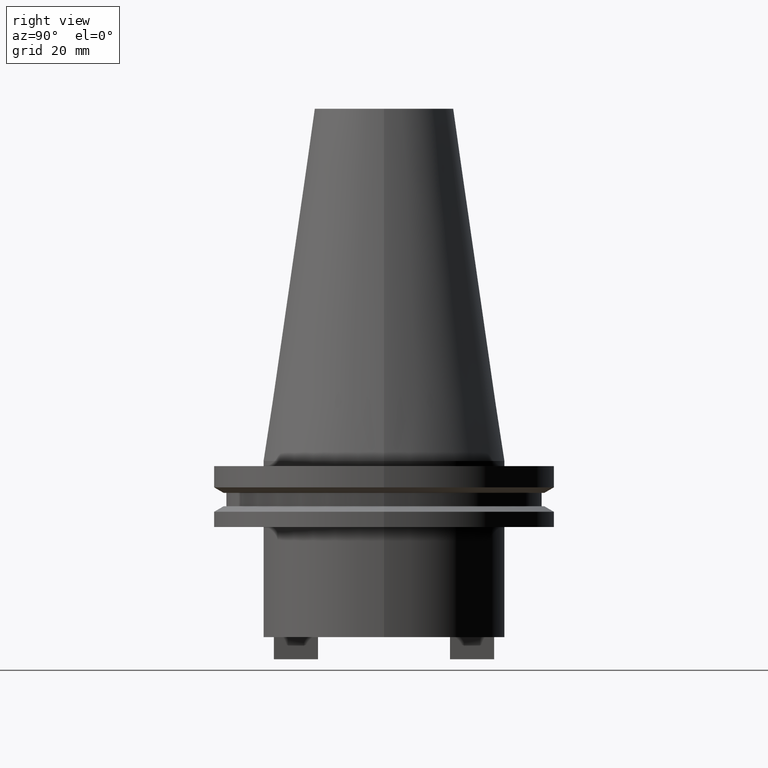
[diagram: clean part render]
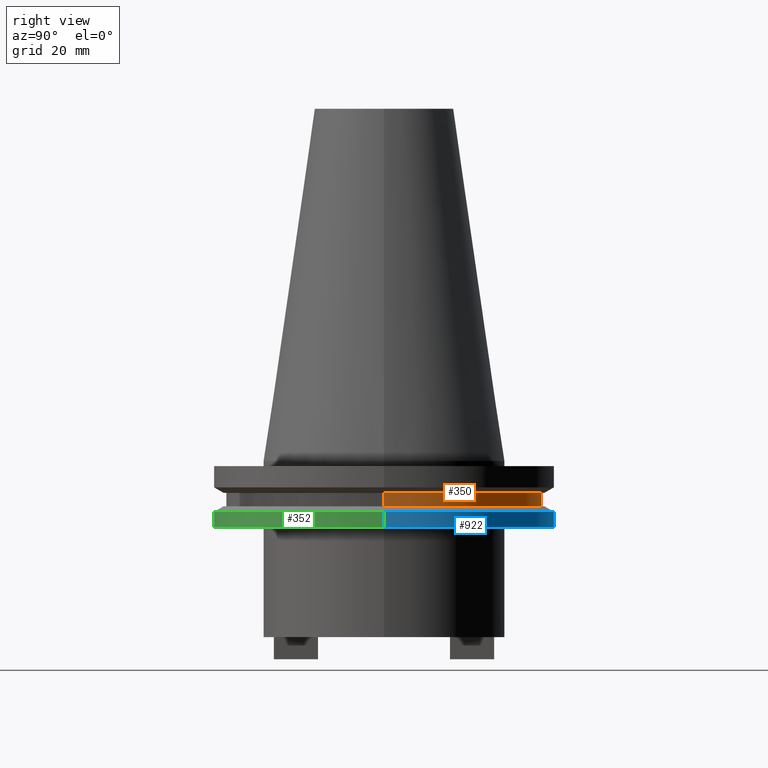
[diagram: same view with three faces highlighted in distinct colors, each labeled with its STEP entity id]
A machine part, right view with three faces highlighted in distinct colors.
Their STEP definitions:

[orange] entity #350 — the highlighted cylindrical surface (partial cylindrical patch) has radius 45.645 mm, axis along (-0, -0, 1).
#49 = VECTOR ( 'NONE', #749, 1000.000000000000000 ) ;
#64 = LINE ( 'NONE', #892, #196 ) ;
#67 = CARTESIAN_POINT ( 'NONE',  ( 0.000000000000000000, 0.000000000000000000, 101.5999999999999943 ) ) ;
#89 = EDGE_LOOP ( 'NONE', ( #219, #674, #766, #93 ) ) ;
#90 = DIRECTION ( 'NONE',  ( 1.000000000000000000, 0.000000000000000000, 0.000000000000000000 ) ) ;
#93 = ORIENTED_EDGE ( 'NONE', *, *, #986, .F. ) ;
#111 = CARTESIAN_POINT ( 'NONE',  ( 0.000000000000000000, 0.000000000000000000, -9.204999999999991189 ) ) ;
#122 = LINE ( 'NONE', #436, #49 ) ;
#128 = EDGE_CURVE ( 'NONE', #726, #815, #122, .T. ) ;
#151 = CIRCLE ( 'NONE', #871, 45.64500000000000313 ) ;
#196 = VECTOR ( 'NONE', #971, 1000.000000000000000 ) ;
#212 = AXIS2_PLACEMENT_3D ( 'NONE', #67, #532, #543 ) ;
#219 = ORIENTED_EDGE ( 'NONE', *, *, #963, .T. ) ;
#281 = CIRCLE ( 'NONE', #964, 45.64500000000000313 ) ;
#297 = FACE_OUTER_BOUND ( 'NONE', #89, .T. ) ;
#350 = ADVANCED_FACE ( 'NONE', ( #297 ), #631, .T. ) ;
#426 = CARTESIAN_POINT ( 'NONE',  ( 45.64500000000000313, 0.000000000000000000, -13.05499999999999794 ) ) ;
#436 = CARTESIAN_POINT ( 'NONE',  ( -45.64500000000000313, 5.589900314708094957E-15, 101.5999999999999943 ) ) ;
#444 = CARTESIAN_POINT ( 'NONE',  ( -45.64500000000000313, 5.589900314708094957E-15, -13.05499999999999794 ) ) ;
#460 = CARTESIAN_POINT ( 'NONE',  ( 45.64500000000000313, 0.000000000000000000, -9.204999999999991189 ) ) ;
#532 = DIRECTION ( 'NONE',  ( -0.000000000000000000, -0.000000000000000000, 1.000000000000000000 ) ) ;
#543 = DIRECTION ( 'NONE',  ( 1.000000000000000000, 0.000000000000000000, 0.000000000000000000 ) ) ;
#603 = DIRECTION ( 'NONE',  ( -0.000000000000000000, -0.000000000000000000, 1.000000000000000000 ) ) ;
#631 = CYLINDRICAL_SURFACE ( 'NONE', #212, 45.64500000000000313 ) ;
#674 = ORIENTED_EDGE ( 'NONE', *, *, #128, .T. ) ;
#702 = VERTEX_POINT ( 'NONE', #460 ) ;
#726 = VERTEX_POINT ( 'NONE', #444 ) ;
#749 = DIRECTION ( 'NONE',  ( -0.000000000000000000, -0.000000000000000000, 1.000000000000000000 ) ) ;
#764 = CARTESIAN_POINT ( 'NONE',  ( 0.000000000000000000, 0.000000000000000000, -13.05499999999999794 ) ) ;
#766 = ORIENTED_EDGE ( 'NONE', *, *, #888, .F. ) ;
#795 = DIRECTION ( 'NONE',  ( -0.000000000000000000, -0.000000000000000000, 1.000000000000000000 ) ) ;
#815 = VERTEX_POINT ( 'NONE', #886 ) ;
#841 = DIRECTION ( 'NONE',  ( 1.000000000000000000, 0.000000000000000000, 0.000000000000000000 ) ) ;
#871 = AXIS2_PLACEMENT_3D ( 'NONE', #764, #603, #841 ) ;
#882 = VERTEX_POINT ( 'NONE', #426 ) ;
#886 = CARTESIAN_POINT ( 'NONE',  ( -45.64500000000000313, 5.589900314708094957E-15, -9.204999999999991189 ) ) ;
#888 = EDGE_CURVE ( 'NONE', #702, #815, #281, .T. ) ;
#892 = CARTESIAN_POINT ( 'NONE',  ( 45.64500000000000313, 0.000000000000000000, 101.5999999999999943 ) ) ;
#963 = EDGE_CURVE ( 'NONE', #882, #726, #151, .T. ) ;
#964 = AXIS2_PLACEMENT_3D ( 'NONE', #111, #795, #90 ) ;
#971 = DIRECTION ( 'NONE',  ( -0.000000000000000000, -0.000000000000000000, 1.000000000000000000 ) ) ;
#986 = EDGE_CURVE ( 'NONE', #882, #702, #64, .T. ) ;

[blue] entity #922 — the highlighted cylindrical surface (partial cylindrical patch) has radius 49.215 mm, axis along (-0, -0, 1).
#36 = DIRECTION ( 'NONE',  ( 1.000000000000000000, 0.000000000000000000, 0.000000000000000000 ) ) ;
#56 = VERTEX_POINT ( 'NONE', #733 ) ;
#66 = ORIENTED_EDGE ( 'NONE', *, *, #645, .F. ) ;
#107 = CYLINDRICAL_SURFACE ( 'NONE', #166, 49.21499999999998920 ) ;
#164 = VECTOR ( 'NONE', #348, 1000.000000000000000 ) ;
#166 = AXIS2_PLACEMENT_3D ( 'NONE', #420, #734, #36 ) ;
#185 = DIRECTION ( 'NONE',  ( -0.000000000000000000, -0.000000000000000000, 1.000000000000000000 ) ) ;
#236 = DIRECTION ( 'NONE',  ( -0.000000000000000000, -0.000000000000000000, 1.000000000000000000 ) ) ;
#242 = CARTESIAN_POINT ( 'NONE',  ( 0.000000000000000000, 0.000000000000000000, -19.04999999999999716 ) ) ;
#264 = CARTESIAN_POINT ( 'NONE',  ( 49.21499999999998920, 0.000000000000000000, -19.04999999999999716 ) ) ;
#267 = VERTEX_POINT ( 'NONE', #918 ) ;
#278 = CARTESIAN_POINT ( 'NONE',  ( -49.21499999999998920, 6.027099222003697037E-15, -19.04999999999999716 ) ) ;
#295 = DIRECTION ( 'NONE',  ( -0.000000000000000000, -0.000000000000000000, 1.000000000000000000 ) ) ;
#348 = DIRECTION ( 'NONE',  ( -0.000000000000000000, -0.000000000000000000, 1.000000000000000000 ) ) ;
#394 = DIRECTION ( 'NONE',  ( 1.000000000000000000, 0.000000000000000000, 0.000000000000000000 ) ) ;
#420 = CARTESIAN_POINT ( 'NONE',  ( 0.000000000000000000, 0.000000000000000000, 101.5999999999999943 ) ) ;
#446 = CIRCLE ( 'NONE', #514, 49.21499999999998920 ) ;
#458 = EDGE_CURVE ( 'NONE', #900, #512, #707, .T. ) ;
#464 = AXIS2_PLACEMENT_3D ( 'NONE', #242, #236, #394 ) ;
#480 = VECTOR ( 'NONE', #185, 1000.000000000000000 ) ;
#503 = EDGE_CURVE ( 'NONE', #512, #267, #747, .T. ) ;
#512 = VERTEX_POINT ( 'NONE', #278 ) ;
#514 = AXIS2_PLACEMENT_3D ( 'NONE', #932, #295, #832 ) ;
#518 = ORIENTED_EDGE ( 'NONE', *, *, #458, .T. ) ;
#587 = EDGE_CURVE ( 'NONE', #900, #56, #680, .T. ) ;
#645 = EDGE_CURVE ( 'NONE', #56, #267, #446, .T. ) ;
#680 = LINE ( 'NONE', #884, #164 ) ;
#707 = CIRCLE ( 'NONE', #464, 49.21499999999998920 ) ;
#733 = CARTESIAN_POINT ( 'NONE',  ( 49.21499999999998920, 0.000000000000000000, -14.65761014474876944 ) ) ;
#734 = DIRECTION ( 'NONE',  ( -0.000000000000000000, -0.000000000000000000, 1.000000000000000000 ) ) ;
#740 = FACE_OUTER_BOUND ( 'NONE', #762, .T. ) ;
#743 = CARTESIAN_POINT ( 'NONE',  ( -49.21499999999998920, 6.027099222003697037E-15, 101.5999999999999943 ) ) ;
#747 = LINE ( 'NONE', #743, #480 ) ;
#762 = EDGE_LOOP ( 'NONE', ( #518, #821, #66, #780 ) ) ;
#780 = ORIENTED_EDGE ( 'NONE', *, *, #587, .F. ) ;
#821 = ORIENTED_EDGE ( 'NONE', *, *, #503, .T. ) ;
#832 = DIRECTION ( 'NONE',  ( 1.000000000000000000, 0.000000000000000000, 0.000000000000000000 ) ) ;
#884 = CARTESIAN_POINT ( 'NONE',  ( 49.21499999999998920, 0.000000000000000000, 101.5999999999999943 ) ) ;
#900 = VERTEX_POINT ( 'NONE', #264 ) ;
#918 = CARTESIAN_POINT ( 'NONE',  ( -49.21499999999998920, 6.027099222003697037E-15, -14.65761014474876944 ) ) ;
#922 = ADVANCED_FACE ( 'NONE', ( #740 ), #107, .T. ) ;
#932 = CARTESIAN_POINT ( 'NONE',  ( 0.000000000000000000, 0.000000000000000000, -14.65761014474876944 ) ) ;

[green] entity #352 — the highlighted cylindrical surface (partial cylindrical patch) has radius 49.215 mm, axis along (-0, -0, 1).
#56 = VERTEX_POINT ( 'NONE', #733 ) ;
#77 = DIRECTION ( 'NONE',  ( -0.000000000000000000, -0.000000000000000000, 1.000000000000000000 ) ) ;
#156 = DIRECTION ( 'NONE',  ( 1.000000000000000000, 0.000000000000000000, 0.000000000000000000 ) ) ;
#164 = VECTOR ( 'NONE', #348, 1000.000000000000000 ) ;
#176 = ORIENTED_EDGE ( 'NONE', *, *, #817, .T. ) ;
#185 = DIRECTION ( 'NONE',  ( -0.000000000000000000, -0.000000000000000000, 1.000000000000000000 ) ) ;
#214 = AXIS2_PLACEMENT_3D ( 'NONE', #908, #828, #962 ) ;
#215 = CIRCLE ( 'NONE', #790, 49.21499999999998920 ) ;
#220 = EDGE_CURVE ( 'NONE', #267, #56, #397, .T. ) ;
#264 = CARTESIAN_POINT ( 'NONE',  ( 49.21499999999998920, 0.000000000000000000, -19.04999999999999716 ) ) ;
#267 = VERTEX_POINT ( 'NONE', #918 ) ;
#278 = CARTESIAN_POINT ( 'NONE',  ( -49.21499999999998920, 6.027099222003697037E-15, -19.04999999999999716 ) ) ;
#317 = CARTESIAN_POINT ( 'NONE',  ( 0.000000000000000000, 0.000000000000000000, -19.04999999999999716 ) ) ;
#344 = EDGE_LOOP ( 'NONE', ( #617, #176, #401, #415 ) ) ;
#348 = DIRECTION ( 'NONE',  ( -0.000000000000000000, -0.000000000000000000, 1.000000000000000000 ) ) ;
#352 = ADVANCED_FACE ( 'NONE', ( #379 ), #536, .T. ) ;
#379 = FACE_OUTER_BOUND ( 'NONE', #344, .T. ) ;
#397 = CIRCLE ( 'NONE', #214, 49.21499999999998920 ) ;
#401 = ORIENTED_EDGE ( 'NONE', *, *, #587, .T. ) ;
#415 = ORIENTED_EDGE ( 'NONE', *, *, #220, .F. ) ;
#476 = DIRECTION ( 'NONE',  ( -0.000000000000000000, -0.000000000000000000, 1.000000000000000000 ) ) ;
#480 = VECTOR ( 'NONE', #185, 1000.000000000000000 ) ;
#503 = EDGE_CURVE ( 'NONE', #512, #267, #747, .T. ) ;
#512 = VERTEX_POINT ( 'NONE', #278 ) ;
#536 = CYLINDRICAL_SURFACE ( 'NONE', #785, 49.21499999999998920 ) ;
#587 = EDGE_CURVE ( 'NONE', #900, #56, #680, .T. ) ;
#617 = ORIENTED_EDGE ( 'NONE', *, *, #503, .F. ) ;
#680 = LINE ( 'NONE', #884, #164 ) ;
#733 = CARTESIAN_POINT ( 'NONE',  ( 49.21499999999998920, 0.000000000000000000, -14.65761014474876944 ) ) ;
#743 = CARTESIAN_POINT ( 'NONE',  ( -49.21499999999998920, 6.027099222003697037E-15, 101.5999999999999943 ) ) ;
#747 = LINE ( 'NONE', #743, #480 ) ;
#785 = AXIS2_PLACEMENT_3D ( 'NONE', #856, #77, #844 ) ;
#790 = AXIS2_PLACEMENT_3D ( 'NONE', #317, #476, #156 ) ;
#817 = EDGE_CURVE ( 'NONE', #512, #900, #215, .T. ) ;
#828 = DIRECTION ( 'NONE',  ( -0.000000000000000000, -0.000000000000000000, 1.000000000000000000 ) ) ;
#844 = DIRECTION ( 'NONE',  ( 1.000000000000000000, 0.000000000000000000, 0.000000000000000000 ) ) ;
#856 = CARTESIAN_POINT ( 'NONE',  ( 0.000000000000000000, 0.000000000000000000, 101.5999999999999943 ) ) ;
#884 = CARTESIAN_POINT ( 'NONE',  ( 49.21499999999998920, 0.000000000000000000, 101.5999999999999943 ) ) ;
#900 = VERTEX_POINT ( 'NONE', #264 ) ;
#908 = CARTESIAN_POINT ( 'NONE',  ( 0.000000000000000000, 0.000000000000000000, -14.65761014474876944 ) ) ;
#918 = CARTESIAN_POINT ( 'NONE',  ( -49.21499999999998920, 6.027099222003697037E-15, -14.65761014474876944 ) ) ;
#962 = DIRECTION ( 'NONE',  ( 1.000000000000000000, 0.000000000000000000, 0.000000000000000000 ) ) ;